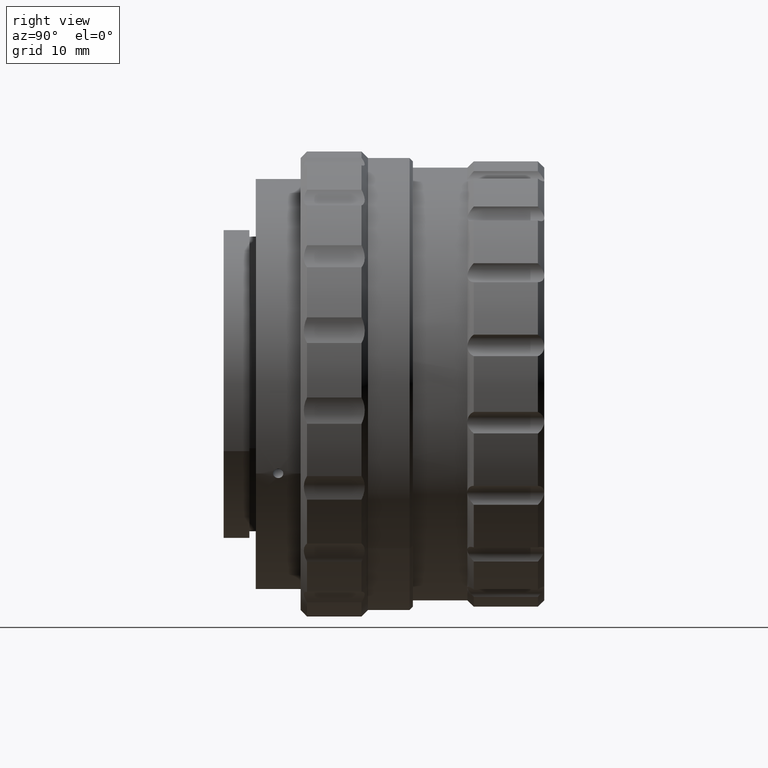
[diagram: clean part render]
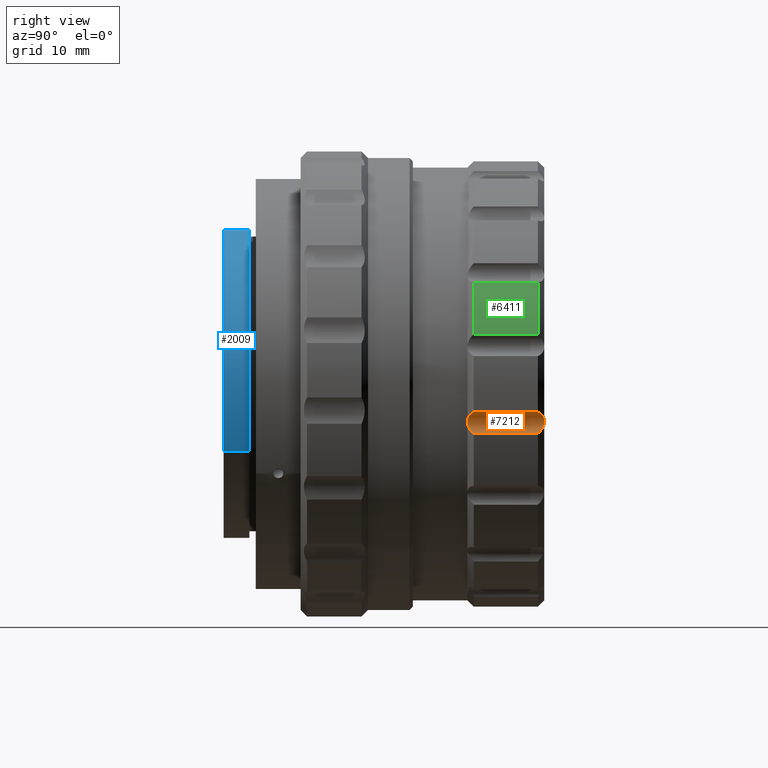
[diagram: same view with three faces highlighted in distinct colors, each labeled with its STEP entity id]
A machine part, right view with three faces highlighted in distinct colors.
Their STEP definitions:

[orange] entity #7212 — the highlighted cylindrical surface (edge-blend (fillet) strip) has radius 2 mm, axis along (-0, 1, -0).
#149 = CARTESIAN_POINT ( 'NONE',  ( 40.44889139640485354, 3.951244312994556918, 40.55752189510511130 ) ) ;
#302 = CARTESIAN_POINT ( 'NONE',  ( 39.92563768293693727, 14.43169244918388472, 40.26186918853261432 ) ) ;
#341 = VERTEX_POINT ( 'NONE', #9551 ) ;
#552 = CARTESIAN_POINT ( 'NONE',  ( 39.20183855366699532, 3.066016483520504821, 38.37730872531647464 ) ) ;
#574 = CARTESIAN_POINT ( 'NONE',  ( 39.26279396981181691, 14.72505194757845182, 38.11425473468713676 ) ) ;
#596 = EDGE_CURVE ( 'NONE', #341, #5463, #9638, .T. ) ;
#603 = CARTESIAN_POINT ( 'NONE',  ( 39.85600825652618795, 3.951244312994556918, 37.19511452275362728 ) ) ;
#630 = FACE_OUTER_BOUND ( 'NONE', #7320, .T. ) ;
#681 = EDGE_CURVE ( 'NONE', #9513, #8105, #10452, .T. ) ;
#753 = CARTESIAN_POINT ( 'NONE',  ( 40.18033352803850278, 14.20221222481326073, 40.43528152132285669 ) ) ;
#786 = CARTESIAN_POINT ( 'NONE',  ( 39.20896267847479066, 2.951244312994550700, 39.04268044907182400 ) ) ;
#805 = CARTESIAN_POINT ( 'NONE',  ( 39.42983872328701977, 14.83647214246861701, 39.67036194215215517 ) ) ;
#946 = CARTESIAN_POINT ( 'NONE',  ( 39.42954143786501930, 3.065807012916371033, 39.66981837913535713 ) ) ;
#1301 = CARTESIAN_POINT ( 'NONE',  ( 39.20896267847479066, 2.951244312994550700, 39.04268044907182400 ) ) ;
#1342 = B_SPLINE_CURVE_WITH_KNOTS ( 'NONE', 3,
 ( #786, #7369, #8284, #946, #7525, #5119, #10582, #4958, #4903, #6603, #8231, #149 ),
 .UNSPECIFIED., .F., .F.,
 ( 4, 2, 2, 2, 2, 4 ),
 ( 0.002305040944917271118, 0.002880546581655814113, 0.003168299400025085394, 0.003456052218394356675, 0.004031557855132925257, 0.004607063491871493839 ),
 .UNSPECIFIED. ) ;
#1585 = CARTESIAN_POINT ( 'NONE',  ( 40.44889139640485354, 7.451244312994560026, 40.55752189510511130 ) ) ;
#1821 = CARTESIAN_POINT ( 'NONE',  ( 39.47698808521686686, 14.80208707484023201, 39.75014822780202906 ) ) ;
#1928 = CARTESIAN_POINT ( 'NONE',  ( 39.21885594429384270, 3.100401551148894708, 38.28620810992643442 ) ) ;
#2106 = CARTESIAN_POINT ( 'NONE',  ( 39.18219347137777930, 2.958858870509273320, 38.84948042763568310 ) ) ;
#2127 = ORIENTED_EDGE ( 'NONE', *, *, #3644, .F. ) ;
#2180 = CARTESIAN_POINT ( 'NONE',  ( 39.74613278553062656, 14.07986817953900527, 37.29197577793808449 ) ) ;
#2509 = CARTESIAN_POINT ( 'NONE',  ( 40.44889139640483933, 13.95124431299456269, 40.55752189510510419 ) ) ;
#2614 = CARTESIAN_POINT ( 'NONE',  ( 39.34680997703417660, 14.89227693427066157, 39.50365183540493774 ) ) ;
#2719 = CARTESIAN_POINT ( 'NONE',  ( 39.38499194753412525, 3.362131814667437713, 37.79427608385542925 ) ) ;
#2767 = CARTESIAN_POINT ( 'NONE',  ( 39.31058737533592051, 14.91399711523661686, 39.41643051373263518 ) ) ;
#3142 = CARTESIAN_POINT ( 'NONE',  ( 39.17034723597194557, 14.92022111915163762, 38.65519295149074708 ) ) ;
#3283 = CARTESIAN_POINT ( 'NONE',  ( 39.20896267847479066, 2.951244312994550700, 39.04268044907182400 ) ) ;
#3403 = AXIS2_PLACEMENT_3D ( 'NONE', #7163, #8348, #9830 ) ;
#3519 = CARTESIAN_POINT ( 'NONE',  ( 39.80135552357190676, 14.54035681132167923, 40.15559126298937542 ) ) ;
#3644 = EDGE_CURVE ( 'NONE', #8105, #4081, #10561, .T. ) ;
#3839 = CARTESIAN_POINT ( 'NONE',  ( 39.64531681764349003, 14.20237046019669336, 37.40193683418947757 ) ) ;
#3895 = CYLINDRICAL_SURFACE ( 'NONE', #3403, 2.000000000000001776 ) ;
#4067 = CARTESIAN_POINT ( 'NONE',  ( 39.22576299968388014, 14.95124431299456091, 39.13795980530873209 ) ) ;
#4081 = VERTEX_POINT ( 'NONE', #7298 ) ;
#4463 = B_SPLINE_CURVE_WITH_KNOTS ( 'NONE', 3,
 ( #4748, #6343, #3142, #5490, #8921, #574, #7102, #6287, #9603, #3839, #2180, #7263 ),
 .UNSPECIFIED., .F., .F.,
 ( 4, 2, 2, 2, 2, 4 ),
 ( 0.002305040944916852182, 0.002880546581655422066, 0.003168299400024696816, 0.003456052218393972000, 0.004031557855132505454, 0.004607063491871038474 ),
 .UNSPECIFIED. ) ;
#4559 = CARTESIAN_POINT ( 'NONE',  ( 39.18083526810363537, 3.010211691718460703, 38.56236248613083006 ) ) ;
#4748 = CARTESIAN_POINT ( 'NONE',  ( 39.20896267847479066, 14.95124431299455914, 39.04268044907182400 ) ) ;
#4818 = CARTESIAN_POINT ( 'NONE',  ( 40.31248591906055623, 14.07989440618742982, 40.50407081615234262 ) ) ;
#4870 = CARTESIAN_POINT ( 'NONE',  ( 39.57750506874788243, 14.72472085432022304, 39.89725809815854518 ) ) ;
#4903 = CARTESIAN_POINT ( 'NONE',  ( 39.92467133294061910, 3.469935366203120708, 40.26114711537950797 ) ) ;
#4958 = CARTESIAN_POINT ( 'NONE',  ( 39.79985580659310784, 3.360859065312884031, 40.15408125232234227 ) ) ;
#5074 = EDGE_CURVE ( 'NONE', #4081, #6983, #4463, .T. ) ;
#5119 = CARTESIAN_POINT ( 'NONE',  ( 39.57708784161268056, 3.177436678410654025, 39.89670385584850010 ) ) ;
#5237 = CARTESIAN_POINT ( 'NONE',  ( 39.85600825652618795, 13.95124431299455914, 37.19511452275364150 ) ) ;
#5463 = VERTEX_POINT ( 'NONE', #3283 ) ;
#5490 = CARTESIAN_POINT ( 'NONE',  ( 39.20174510625061259, 14.83668161307274502, 38.37792118507493910 ) ) ;
#5548 = ORIENTED_EDGE ( 'NONE', *, *, #5074, .F. ) ;
#5663 = EDGE_CURVE ( 'NONE', #6983, #341, #8566, .T. ) ;
#5868 = CARTESIAN_POINT ( 'NONE',  ( 39.24988615112355461, 14.94362975547984540, 39.23338469159909181 ) ) ;
#5971 = CARTESIAN_POINT ( 'NONE',  ( 39.74611038171534005, 3.822594219801697335, 37.29199552813028617 ) ) ;
#6024 = CARTESIAN_POINT ( 'NONE',  ( 39.26299647303765994, 3.177767771668906782, 38.11359121719368659 ) ) ;
#6254 = DIRECTION ( 'NONE',  ( 0.000000000000000000, -1.000000000000000000, 0.000000000000000000 ) ) ;
#6287 = CARTESIAN_POINT ( 'NONE',  ( 39.38409912862064743, 14.54162956067623469, 37.79620796315261089 ) ) ;
#6343 = CARTESIAN_POINT ( 'NONE',  ( 39.17540168816045565, 14.95124431299455559, 38.85234661485390717 ) ) ;
#6521 = ORIENTED_EDGE ( 'NONE', *, *, #596, .F. ) ;
#6547 = VECTOR ( 'NONE', #8895, 1000.000000000000000 ) ;
#6603 = CARTESIAN_POINT ( 'NONE',  ( 40.18016880942378322, 3.700118165792426250, 40.43523321135912596 ) ) ;
#6853 = ORIENTED_EDGE ( 'NONE', *, *, #9422, .F. ) ;
#6983 = VERTEX_POINT ( 'NONE', #5237 ) ;
#7073 = CARTESIAN_POINT ( 'NONE',  ( 39.19216235726570119, 2.951244312994555585, 38.94740109283493013 ) ) ;
#7102 = CARTESIAN_POINT ( 'NONE',  ( 39.28987590062008195, 14.68199172080699277, 38.03208033088105111 ) ) ;
#7163 = CARTESIAN_POINT ( 'NONE',  ( 41.17857818449920160, -0.04875568700544313794, 38.69538409373794963 ) ) ;
#7212 = ADVANCED_FACE ( 'NONE', ( #630 ), #3895, .F. ) ;
#7263 = CARTESIAN_POINT ( 'NONE',  ( 39.85600825652618795, 13.95124431299455914, 37.19511452275364150 ) ) ;
#7298 = CARTESIAN_POINT ( 'NONE',  ( 39.20896267847479066, 14.95124431299455914, 39.04268044907182400 ) ) ;
#7320 = EDGE_LOOP ( 'NONE', ( #7733, #5548, #2127, #7559, #6853, #6521 ) ) ;
#7369 = CARTESIAN_POINT ( 'NONE',  ( 39.24252366878910436, 2.951244312994555141, 39.23301428328974083 ) ) ;
#7474 = CARTESIAN_POINT ( 'NONE',  ( 39.20896267847479066, 14.95124431299455914, 39.04268044907182400 ) ) ;
#7525 = CARTESIAN_POINT ( 'NONE',  ( 39.47659672678853582, 3.100110370235593660, 39.74951862348508769 ) ) ;
#7559 = ORIENTED_EDGE ( 'NONE', *, *, #681, .F. ) ;
#7730 = CARTESIAN_POINT ( 'NONE',  ( 40.44889139640485354, 3.951244312994556918, 40.55752189510511130 ) ) ;
#7733 = ORIENTED_EDGE ( 'NONE', *, *, #5663, .F. ) ;
#8058 = VECTOR ( 'NONE', #6254, 1000.000000000000000 ) ;
#8085 = CARTESIAN_POINT ( 'NONE',  ( 39.63120839354075287, 14.68153596658676818, 39.96537761291706659 ) ) ;
#8105 = VERTEX_POINT ( 'NONE', #2509 ) ;
#8231 = CARTESIAN_POINT ( 'NONE',  ( 40.31251372672404187, 3.822620446450104570, 40.50408171270609614 ) ) ;
#8284 = CARTESIAN_POINT ( 'NONE',  ( 39.30520456156608589, 2.982267506837474880, 39.42000685037497476 ) ) ;
#8348 = DIRECTION ( 'NONE',  ( -0.000000000000000000, 1.000000000000000000, -0.000000000000000000 ) ) ;
#8566 = LINE ( 'NONE', #10327, #8058 ) ;
#8684 = CARTESIAN_POINT ( 'NONE',  ( 39.17662860552152893, 2.988491510752500968, 38.65671257790594240 ) ) ;
#8895 = DIRECTION ( 'NONE',  ( -0.000000000000000000, 1.000000000000000000, -0.000000000000000000 ) ) ;
#8921 = CARTESIAN_POINT ( 'NONE',  ( 39.21870352502537571, 14.80237825575351529, 38.28693359692282883 ) ) ;
#9130 = CARTESIAN_POINT ( 'NONE',  ( 40.44889139640483933, 13.95124431299456269, 40.55752189510510419 ) ) ;
#9235 = CARTESIAN_POINT ( 'NONE',  ( 39.29016284485619792, 3.220952659402353646, 38.03121219300087574 ) ) ;
#9422 = EDGE_CURVE ( 'NONE', #5463, #9513, #1342, .T. ) ;
#9513 = VERTEX_POINT ( 'NONE', #7730 ) ;
#9551 = CARTESIAN_POINT ( 'NONE',  ( 39.85600825652618795, 3.951244312994556918, 37.19511452275362728 ) ) ;
#9582 = CARTESIAN_POINT ( 'NONE',  ( 39.46542978425814141, 3.470796176805230893, 37.65190049951115725 ) ) ;
#9603 = CARTESIAN_POINT ( 'NONE',  ( 39.46476867586079607, 14.43255325978599224, 37.65290953748905167 ) ) ;
#9638 = B_SPLINE_CURVE_WITH_KNOTS ( 'NONE', 3,
 ( #603, #5971, #10093, #9582, #2719, #9235, #6024, #1928, #552, #4559, #8684, #2106, #7073, #1301 ),
 .UNSPECIFIED., .F., .F.,
 ( 4, 2, 2, 2, 2, 2, 4 ),
 ( 2.985724654994847421E-07, 0.0005764841655784421707, 0.001152669758691384719, 0.001440762555247856102, 0.001728855351804327702, 0.002016948148360799518, 0.002305040944917271118 ),
 .UNSPECIFIED. ) ;
#9830 = DIRECTION ( 'NONE',  ( 0.000000000000000000, 0.000000000000000000, 1.000000000000000000 ) ) ;
#10093 = CARTESIAN_POINT ( 'NONE',  ( 39.64545507952953329, 3.700276401175863317, 37.40183510058882632 ) ) ;
#10327 = CARTESIAN_POINT ( 'NONE',  ( 39.85600825652618795, 7.451244312994560026, 37.19511452275362728 ) ) ;
#10452 = LINE ( 'NONE', #1585, #6547 ) ;
#10561 = B_SPLINE_CURVE_WITH_KNOTS ( 'NONE', 3,
 ( #9130, #4818, #753, #302, #3519, #8085, #4870, #1821, #805, #2614, #2767, #5868, #4067, #7474 ),
 .UNSPECIFIED., .F., .F.,
 ( 4, 2, 2, 2, 2, 2, 4 ),
 ( 2.985724650944759913E-07, 0.0005764841655780404738, 0.001152669758690986600, 0.001440762555247452996, 0.001728855351803919391, 0.002016948148360385787, 0.002305040944916852182 ),
 .UNSPECIFIED. ) ;
#10582 = CARTESIAN_POINT ( 'NONE',  ( 39.63064183351730208, 3.220496905182121505, 39.96465997086599486 ) ) ;

[blue] entity #2009 — the highlighted cylindrical surface (partial cylindrical patch) has radius 24 mm, axis along (0, -1, 0).
#175 = CARTESIAN_POINT ( 'NONE',  ( -15.62741030651342378, -31.04875568700542132, 55.36649860406328827 ) ) ;
#599 = LINE ( 'NONE', #3860, #5039 ) ;
#739 = DIRECTION ( 'NONE',  ( 0.000000000000000000, -1.000000000000000000, 0.000000000000000000 ) ) ;
#788 = ORIENTED_EDGE ( 'NONE', *, *, #5111, .F. ) ;
#869 = AXIS2_PLACEMENT_3D ( 'NONE', #3195, #739, #8120 ) ;
#1236 = CARTESIAN_POINT ( 'NONE',  ( -15.62741030651342378, -35.04875568700542487, 55.36649860406328827 ) ) ;
#1395 = FACE_OUTER_BOUND ( 'NONE', #5925, .T. ) ;
#1955 = CYLINDRICAL_SURFACE ( 'NONE', #3176, 24.00000000000000355 ) ;
#2009 = ADVANCED_FACE ( 'NONE', ( #1395 ), #1955, .T. ) ;
#2742 = CIRCLE ( 'NONE', #6442, 24.00000000000000355 ) ;
#3062 = LINE ( 'NONE', #8677, #5994 ) ;
#3176 = AXIS2_PLACEMENT_3D ( 'NONE', #5202, #7862, #7805 ) ;
#3195 = CARTESIAN_POINT ( 'NONE',  ( 5.971701014312827738, -35.04875568700542487, 44.90330644533106863 ) ) ;
#3405 = CARTESIAN_POINT ( 'NONE',  ( 5.971701014312827738, -31.04875568700542132, 44.90330644533106863 ) ) ;
#3860 = CARTESIAN_POINT ( 'NONE',  ( 27.57081233513908103, -55.31082790531268500, 34.44011428659884899 ) ) ;
#4470 = EDGE_CURVE ( 'NONE', #7351, #6314, #599, .T. ) ;
#4672 = VERTEX_POINT ( 'NONE', #1236 ) ;
#5039 = VECTOR ( 'NONE', #7124, 1000.000000000000000 ) ;
#5111 = EDGE_CURVE ( 'NONE', #6314, #4672, #7017, .T. ) ;
#5202 = CARTESIAN_POINT ( 'NONE',  ( 5.971701014312827738, -55.31082790531268500, 44.90330644533106863 ) ) ;
#5696 = DIRECTION ( 'NONE',  ( -0.8999629717010937391, 0.000000000000000000, 0.4359663399471757073 ) ) ;
#5718 = ORIENTED_EDGE ( 'NONE', *, *, #9990, .T. ) ;
#5925 = EDGE_LOOP ( 'NONE', ( #9963, #6012, #5718, #788 ) ) ;
#5994 = VECTOR ( 'NONE', #10332, 1000.000000000000000 ) ;
#6012 = ORIENTED_EDGE ( 'NONE', *, *, #6607, .T. ) ;
#6314 = VERTEX_POINT ( 'NONE', #9280 ) ;
#6442 = AXIS2_PLACEMENT_3D ( 'NONE', #3405, #9924, #5696 ) ;
#6607 = EDGE_CURVE ( 'NONE', #7351, #7696, #2742, .T. ) ;
#7017 = CIRCLE ( 'NONE', #869, 24.00000000000000355 ) ;
#7124 = DIRECTION ( 'NONE',  ( 0.000000000000000000, -1.000000000000000000, 0.000000000000000000 ) ) ;
#7351 = VERTEX_POINT ( 'NONE', #8226 ) ;
#7696 = VERTEX_POINT ( 'NONE', #175 ) ;
#7805 = DIRECTION ( 'NONE',  ( -0.8999629717010937391, 0.000000000000000000, 0.4359663399471757073 ) ) ;
#7862 = DIRECTION ( 'NONE',  ( 0.000000000000000000, -1.000000000000000000, 0.000000000000000000 ) ) ;
#8120 = DIRECTION ( 'NONE',  ( -0.8999629717010937391, 0.000000000000000000, 0.4359663399471757073 ) ) ;
#8226 = CARTESIAN_POINT ( 'NONE',  ( 27.57081233513907748, -31.04875568700542132, 34.44011428659884899 ) ) ;
#8677 = CARTESIAN_POINT ( 'NONE',  ( -15.62741030651342378, -55.31082790531268500, 55.36649860406328827 ) ) ;
#9280 = CARTESIAN_POINT ( 'NONE',  ( 27.57081233513907748, -35.04875568700542487, 34.44011428659884899 ) ) ;
#9924 = DIRECTION ( 'NONE',  ( 0.000000000000000000, -1.000000000000000000, 0.000000000000000000 ) ) ;
#9963 = ORIENTED_EDGE ( 'NONE', *, *, #4470, .F. ) ;
#9990 = EDGE_CURVE ( 'NONE', #7696, #4672, #3062, .T. ) ;
#10332 = DIRECTION ( 'NONE',  ( 0.000000000000000000, -1.000000000000000000, 0.000000000000000000 ) ) ;

[green] entity #6411 — the highlighted cylindrical surface (partial cylindrical patch) has radius 34.75 mm, axis along (-0, -1, -0).
#226 = CARTESIAN_POINT ( 'NONE',  ( 36.88331654706514229, 3.951244312994556918, 60.77890171465268310 ) ) ;
#691 = EDGE_CURVE ( 'NONE', #5197, #10249, #4777, .T. ) ;
#1313 = AXIS2_PLACEMENT_3D ( 'NONE', #2012, #1920, #4413 ) ;
#1803 = VERTEX_POINT ( 'NONE', #9534 ) ;
#1822 = CARTESIAN_POINT ( 'NONE',  ( 36.88331654706512808, 13.95124431299455914, 60.77890171465268310 ) ) ;
#1920 = DIRECTION ( 'NONE',  ( -0.000000000000000000, -1.000000000000000000, -0.000000000000000000 ) ) ;
#2012 = CARTESIAN_POINT ( 'NONE',  ( 5.971701014312827738, 13.95124431299455914, 44.90330644533106863 ) ) ;
#2473 = CARTESIAN_POINT ( 'NONE',  ( 39.85600825652633716, 13.95124431299455914, 52.61149836790781364 ) ) ;
#3057 = ORIENTED_EDGE ( 'NONE', *, *, #691, .T. ) ;
#3148 = DIRECTION ( 'NONE',  ( -0.000000000000000000, 1.000000000000000000, -0.000000000000000000 ) ) ;
#3300 = DIRECTION ( 'NONE',  ( -0.000000000000000000, -1.000000000000000000, -0.000000000000000000 ) ) ;
#3350 = DIRECTION ( 'NONE',  ( 0.000000000000000000, 0.000000000000000000, -1.000000000000000000 ) ) ;
#3539 = CIRCLE ( 'NONE', #1313, 34.75000000000000000 ) ;
#3594 = AXIS2_PLACEMENT_3D ( 'NONE', #3940, #3878, #9594 ) ;
#3878 = DIRECTION ( 'NONE',  ( -0.000000000000000000, -1.000000000000000000, -0.000000000000000000 ) ) ;
#3926 = CARTESIAN_POINT ( 'NONE',  ( 36.88331654706514229, 7.451244312994560026, 60.77890171465268310 ) ) ;
#3940 = CARTESIAN_POINT ( 'NONE',  ( 5.971701014312827738, -9.548755687005433757, 44.90330644533106863 ) ) ;
#4413 = DIRECTION ( 'NONE',  ( 0.000000000000000000, 0.000000000000000000, -1.000000000000000000 ) ) ;
#4777 = LINE ( 'NONE', #3926, #6224 ) ;
#5197 = VERTEX_POINT ( 'NONE', #1822 ) ;
#5268 = ORIENTED_EDGE ( 'NONE', *, *, #7992, .T. ) ;
#5423 = FACE_OUTER_BOUND ( 'NONE', #6450, .T. ) ;
#5750 = CARTESIAN_POINT ( 'NONE',  ( 5.971701014312827738, 3.951244312994556918, 44.90330644533106863 ) ) ;
#6224 = VECTOR ( 'NONE', #7241, 1000.000000000000000 ) ;
#6289 = VECTOR ( 'NONE', #3148, 1000.000000000000000 ) ;
#6411 = ADVANCED_FACE ( 'NONE', ( #5423 ), #9649, .T. ) ;
#6450 = EDGE_LOOP ( 'NONE', ( #7168, #3057, #10256, #5268 ) ) ;
#6459 = LINE ( 'NONE', #9723, #6289 ) ;
#7168 = ORIENTED_EDGE ( 'NONE', *, *, #8639, .T. ) ;
#7241 = DIRECTION ( 'NONE',  ( 0.000000000000000000, -1.000000000000000000, 0.000000000000000000 ) ) ;
#7344 = EDGE_CURVE ( 'NONE', #1803, #10249, #10055, .T. ) ;
#7992 = EDGE_CURVE ( 'NONE', #1803, #9152, #6459, .T. ) ;
#8639 = EDGE_CURVE ( 'NONE', #9152, #5197, #3539, .T. ) ;
#9152 = VERTEX_POINT ( 'NONE', #2473 ) ;
#9534 = CARTESIAN_POINT ( 'NONE',  ( 39.85600825652635137, 3.951244312994556918, 52.61149836790782786 ) ) ;
#9594 = DIRECTION ( 'NONE',  ( 0.000000000000000000, 0.000000000000000000, -1.000000000000000000 ) ) ;
#9649 = CYLINDRICAL_SURFACE ( 'NONE', #3594, 34.75000000000000000 ) ;
#9723 = CARTESIAN_POINT ( 'NONE',  ( 39.85600825652635137, 7.451244312994560026, 52.61149836790782786 ) ) ;
#10055 = CIRCLE ( 'NONE', #10570, 34.75000000000000000 ) ;
#10249 = VERTEX_POINT ( 'NONE', #226 ) ;
#10256 = ORIENTED_EDGE ( 'NONE', *, *, #7344, .F. ) ;
#10570 = AXIS2_PLACEMENT_3D ( 'NONE', #5750, #3300, #3350 ) ;